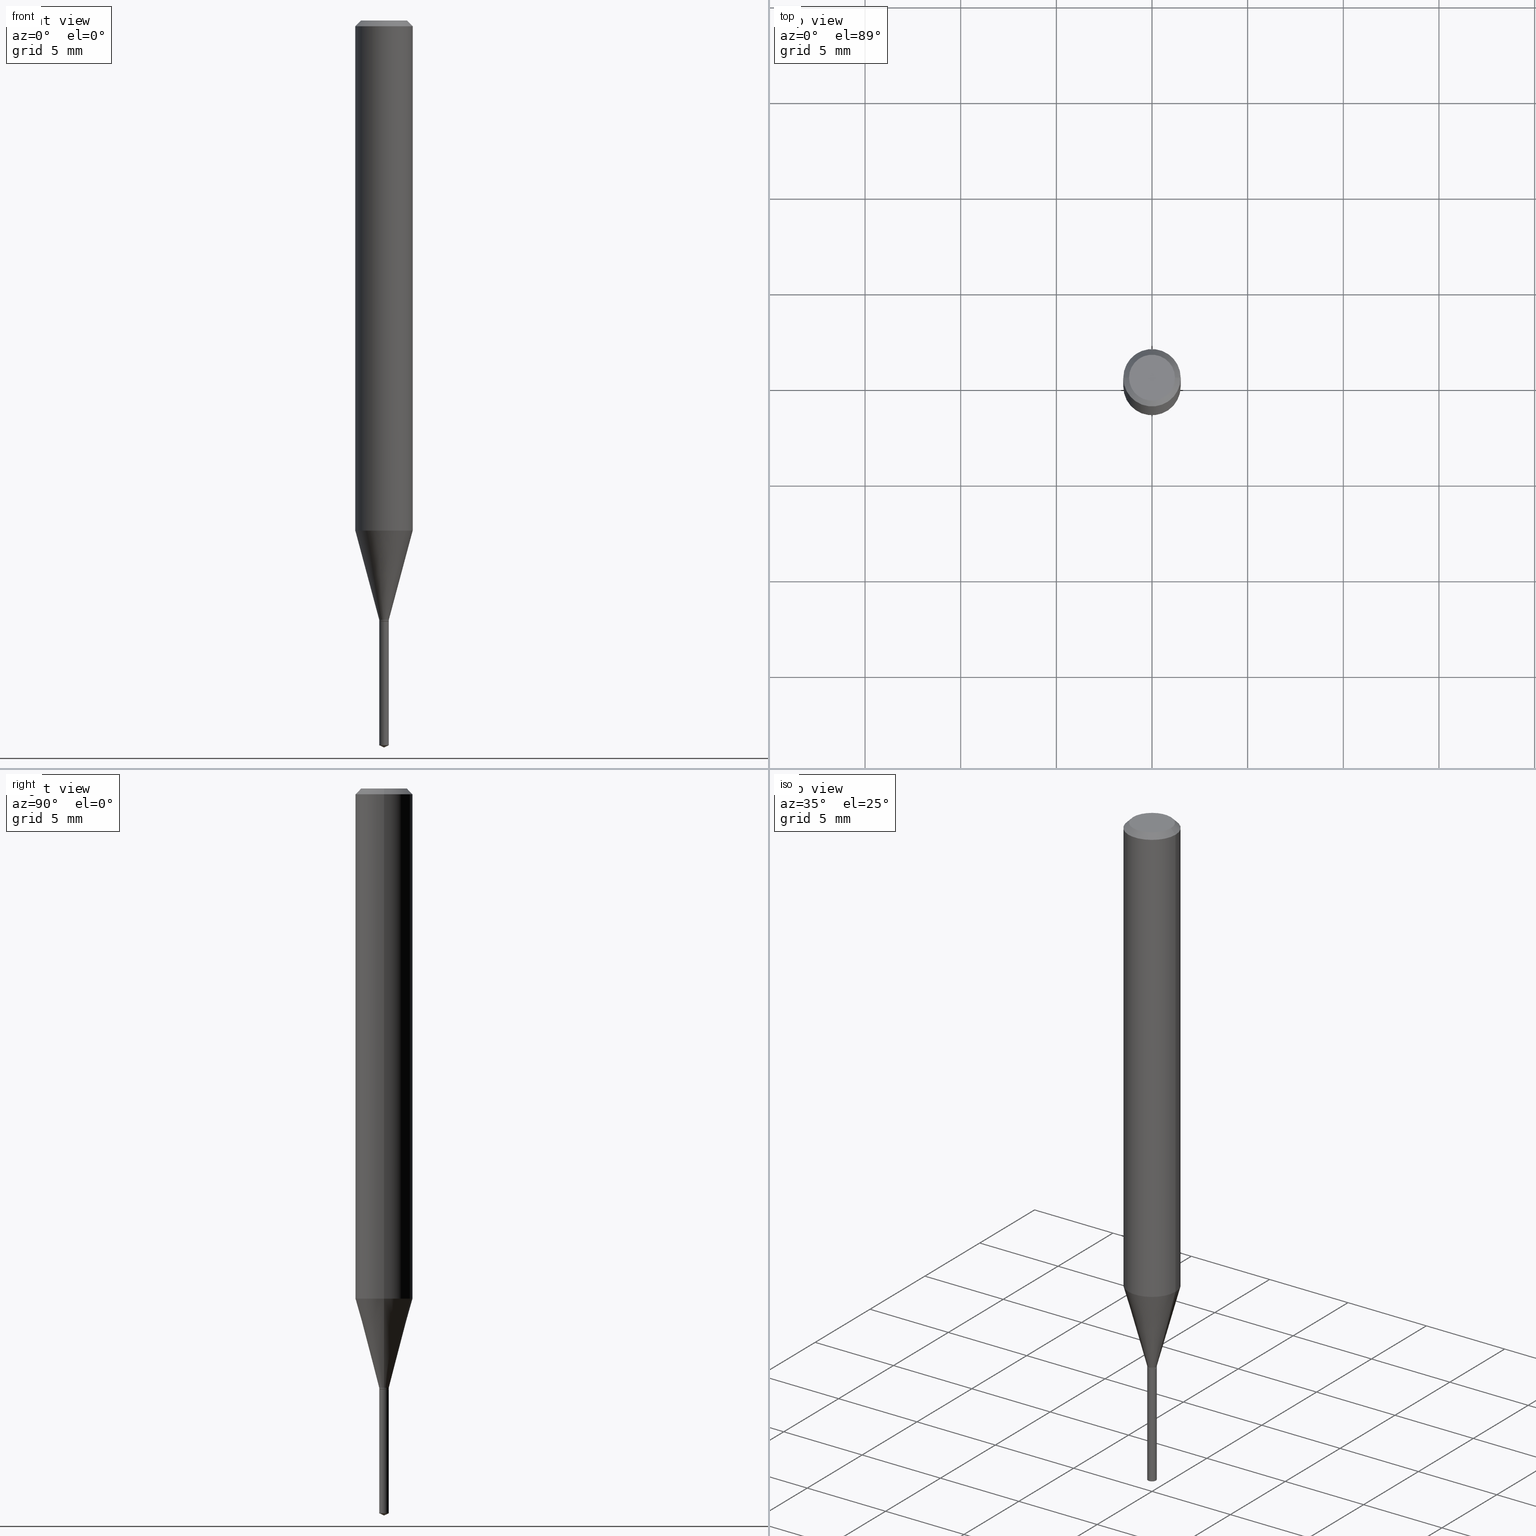
[diagram: canonical four-view strip — front | top / right | iso, engineering-drawing reading convention]
A machine part, canonical four-view strip (front | top / right | iso — engineering-drawing reading convention). The complete STEP part file that produces these views, byte-faithful:
ISO-10303-21;
HEADER;
FILE_DESCRIPTION (( 'STEP AP203' ),
    '1' );
FILE_NAME ('07425.STEP',
    '2024-04-23T21:18:27',
    ( '' ),
    ( '' ),
    'SwSTEP 2.0',
    'SolidWorks 2023',
    '' );
FILE_SCHEMA (( 'CONFIG_CONTROL_DESIGN' ));
ENDSEC;

DATA;
#1 = CARTESIAN_POINT ( 'NONE',  ( 6.998845947240637338E-17, 0.009849999999995683389, -1.236299999999999955 ) ) ;
#2 = EDGE_LOOP ( 'NONE', ( #384, #455, #309, #487 ) ) ;
#3 = ADVANCED_FACE ( 'NONE', ( #117 ), #485, .T. ) ;
#4 = DIRECTION ( 'NONE',  ( -2.445468806185136877E-29, 3.491481338843145188E-15, 1.000000000000000000 ) ) ;
#5 = CARTESIAN_POINT ( 'NONE',  ( 0.000000000000000000, 0.000000000000000000, 0.000000000000000000 ) ) ;
#6 = EDGE_LOOP ( 'NONE', ( #158, #348, #156, #137 ) ) ;
#7 = CONICAL_SURFACE ( 'NONE', #207, 0.009849999999999999381, 0.2617993877991500740 ) ;
#8 = AXIS2_PLACEMENT_3D ( 'NONE', #250, #59, #43 ) ;
#9 = CARTESIAN_POINT ( 'NONE',  ( 3.023333085086683703E-29, -4.316518379211780118E-15, -1.236299999999999955 ) ) ;
#10 = ORIENTED_EDGE ( 'NONE', *, *, #81, .T. ) ;
#11 = EDGE_CURVE ( 'NONE', #386, #382, #415, .T. ) ;
#12 = DIRECTION ( 'NONE',  ( 1.000000000000000000, 0.000000000000000000, 0.000000000000000000 ) ) ;
#13 = EDGE_LOOP ( 'NONE', ( #380, #325, #169 ) ) ;
#14 = DIRECTION ( 'NONE',  ( 1.000000000000000000, -6.982962677686278543E-15, 0.000000000000000000 ) ) ;
#15 = ADVANCED_BREP_SHAPE_REPRESENTATION ( '07425', ( #82, #83, #456 ), #86 ) ;
#16 = DATE_AND_TIME ( #316, #202 ) ;
#17 = EDGE_CURVE ( 'NONE', #196, #307, #276, .T. ) ;
#18 = CARTESIAN_POINT ( 'NONE',  ( 3.023333085086683703E-29, -4.316518379211780118E-15, -1.236299999999999955 ) ) ;
#19 = SHAPE_DEFINITION_REPRESENTATION ( #134, #15 ) ;
#20 = CLOSED_SHELL ( 'NONE', ( #92, #3, #47, #88, #220 ) ) ;
#21 = CIRCLE ( 'NONE', #8, 0.04724000000000000421 ) ;
#22 = EDGE_CURVE ( 'NONE', #382, #41, #312, .T. ) ;
#23 = FACE_OUTER_BOUND ( 'NONE', #422, .T. ) ;
#24 = CARTESIAN_POINT ( 'NONE',  ( 0.009349999999999998937, -4.381809080248147507E-15, -1.236299999999999955 ) ) ;
#25 = AXIS2_PLACEMENT_3D ( 'NONE', #419, #97, #262 ) ;
#26 = DIRECTION ( 'NONE',  ( -2.445468806185136597E-29, 3.491481338843145583E-15, 1.000000000000000000 ) ) ;
#27 = EDGE_LOOP ( 'NONE', ( #461, #252, #149, #84 ) ) ;
#28 = DIRECTION ( 'NONE',  ( -2.434295203704088980E-29, 3.507482573557964514E-15, 1.000000000000000000 ) ) ;
#29 = CARTESIAN_POINT ( 'NONE',  ( -0.009349999999999998937, -4.247433406244099767E-15, -1.236299999999999955 ) ) ;
#30 = ORIENTED_EDGE ( 'NONE', *, *, #320, .F. ) ;
#31 = DIRECTION ( 'NONE',  ( -6.982962677686267499E-15, -1.000000000000000000, 3.520397390770357234E-15 ) ) ;
#32 = CARTESIAN_POINT ( 'NONE',  ( 8.265746106709734507E-48, -1.180129479067563789E-33, -3.380025165646692144E-19 ) ) ;
#33 = FACE_OUTER_BOUND ( 'NONE', #27, .T. ) ;
#34 = VECTOR ( 'NONE', #372, 39.37007874015748143 ) ;
#35 = COORDINATED_UNIVERSAL_TIME_OFFSET ( 5, 0, .BEHIND. ) ;
#36 = CARTESIAN_POINT ( 'NONE',  ( 3.644581943626389528E-29, -5.211652026870922301E-15, -1.491506869567173377 ) ) ;
#37 = LENGTH_MEASURE_WITH_UNIT ( LENGTH_MEASURE( 0.02539999999999999897 ), #157 );
#38 = VERTEX_POINT ( 'NONE', #381 ) ;
#39 = CARTESIAN_POINT ( 'NONE',  ( -9.218263086760866738E-28, 1.328621027488851343E-13, 37.87397874015748300 ) ) ;
#40 = FACE_OUTER_BOUND ( 'NONE', #80, .T. ) ;
#41 = VERTEX_POINT ( 'NONE', #1 ) ;
#42 = APPLICATION_CONTEXT ( 'configuration controlled 3d designs of mechanical parts and assemblies' ) ;
#43 = DIRECTION ( 'NONE',  ( 1.000000000000000000, -6.982962677686266711E-15, 4.876185090822587894E-29 ) ) ;
#44 = ORIENTED_EDGE ( 'NONE', *, *, #122, .F. ) ;
#45 = CONICAL_SURFACE ( 'NONE', #120, 0.009849999999999999381, 0.2617993877991500740 ) ;
#46 = LOCAL_TIME ( 17, 18, 27.00000000000000000, #35 ) ;
#47 = ADVANCED_FACE ( 'NONE', ( #76 ), #397, .T. ) ;
#48 = CARTESIAN_POINT ( 'NONE',  ( -0.05904999999999999832, 3.711095515056362547E-16, -0.01181000000000007218 ) ) ;
#49 = ORIENTED_EDGE ( 'NONE', *, *, #11, .F. ) ;
#50 = ORIENTED_EDGE ( 'NONE', *, *, #445, .T. ) ;
#51 = EDGE_CURVE ( 'NONE', #307, #475, #291, .T. ) ;
#52 = AXIS2_PLACEMENT_3D ( 'NONE', #139, #260, #67 ) ;
#53 = PERSON_AND_ORGANIZATION_ROLE ( 'design_supplier' ) ;
#54 = PERSON ( 'UNSPECIFIED', 'UNSPECIFIED', 'UNSPECIFIED', ('UNSPECIFIED'), ('UNSPECIFIED'), ('UNSPECIFIED') ) ;
#55 = DIRECTION ( 'NONE',  ( 6.982962677686265922E-15, 1.000000000000000000, -3.507482573557964120E-15 ) ) ;
#56 = DIRECTION ( 'NONE',  ( -2.445468806185136597E-29, 3.491481338843145583E-15, 1.000000000000000000 ) ) ;
#57 = VECTOR ( 'NONE', #126, 39.37007874015748143 ) ;
#58 = CC_DESIGN_PERSON_AND_ORGANIZATION_ASSIGNMENT ( #89, #53, ( #143 ) ) ;
#59 = DIRECTION ( 'NONE',  ( -2.445468806185136597E-29, 3.491481338843145583E-15, 1.000000000000000000 ) ) ;
#60 = DIRECTION ( 'NONE',  ( 1.000000000000000000, -6.982962677686276177E-15, 0.000000000000000000 ) ) ;
#61 = EDGE_LOOP ( 'NONE', ( #145, #241, #87, #279 ) ) ;
#62 = EDGE_CURVE ( 'NONE', #38, #376, #85, .T. ) ;
#63 = AXIS2_PLACEMENT_3D ( 'NONE', #127, #399, #423 ) ;
#64 = CYLINDRICAL_SURFACE ( 'NONE', #165, 0.009850000000000001116 ) ;
#65 = DIRECTION ( 'NONE',  ( 0.7071067811866191821, -2.468850131083007662E-15, 0.7071067811864758523 ) ) ;
#66 = CARTESIAN_POINT ( 'NONE',  ( 3.015996678668129136E-29, -4.306043935195251097E-15, -1.233299999999999841 ) ) ;
#67 = DIRECTION ( 'NONE',  ( -1.000000000000000000, 6.982962677686266711E-15, 0.000000000000000000 ) ) ;
#68 = APPLICATION_CONTEXT ( 'configuration controlled 3d designs of mechanical parts and assemblies' ) ;
#69 = CARTESIAN_POINT ( 'NONE',  ( 3.023333085086683703E-29, -4.316518379211780118E-15, -1.236299999999999955 ) ) ;
#70 = APPROVAL_DATE_TIME ( #350, #153 ) ;
#71 = CARTESIAN_POINT ( 'NONE',  ( 0.05904999999999999832, -4.463468013801466955E-16, -0.01181000000000007218 ) ) ;
#72 = EDGE_CURVE ( 'NONE', #41, #382, #426, .T. ) ;
#73 = AXIS2_PLACEMENT_3D ( 'NONE', #253, #100, #226 ) ;
#74 = VECTOR ( 'NONE', #368, 39.37007874015747433 ) ;
#75 = APPLICATION_PROTOCOL_DEFINITION ( 'international standard', 'config_control_design', 1994, #42 ) ;
#76 = FACE_OUTER_BOUND ( 'NONE', #13, .T. ) ;
#77 = CARTESIAN_POINT ( 'NONE',  ( 3.023333085086683703E-29, -4.316518379211780118E-15, -1.236299999999999955 ) ) ;
#78 = ORIENTED_EDGE ( 'NONE', *, *, #81, .F. ) ;
#79 = APPROVAL_STATUS ( 'not_yet_approved' ) ;
#80 = EDGE_LOOP ( 'NONE', ( #78, #343, #231, #152 ) ) ;
#81 = EDGE_CURVE ( 'NONE', #365, #270, #268, .T. ) ;
#82 = MANIFOLD_SOLID_BREP ( 'Body-Move/Copy2[1]', #20 ) ;
#83 = MANIFOLD_SOLID_BREP ( 'Body-Move/Copy2[2]', #404 ) ;
#84 = ORIENTED_EDGE ( 'NONE', *, *, #249, .F. ) ;
#85 = CIRCLE ( 'NONE', #93, 0.009849999999999999381 ) ;
#86 =( GEOMETRIC_REPRESENTATION_CONTEXT ( 3 ) GLOBAL_UNCERTAINTY_ASSIGNED_CONTEXT ( ( #222 ) ) GLOBAL_UNIT_ASSIGNED_CONTEXT ( ( #278, #458, #197 ) ) REPRESENTATION_CONTEXT ( 'NONE', 'WORKASPACE' ) );
#87 = ORIENTED_EDGE ( 'NONE', *, *, #308, .F. ) ;
#88 = ADVANCED_FACE ( 'NONE', ( #147 ), #64, .T. ) ;
#89 = PERSON_AND_ORGANIZATION ( #54, #398 ) ;
#90 = VECTOR ( 'NONE', #103, 39.37007874015748854 ) ;
#91 = CALENDAR_DATE ( 2024, 23, 4 ) ;
#92 = ADVANCED_FACE ( 'NONE', ( #479 ), #229, .T. ) ;
#93 = AXIS2_PLACEMENT_3D ( 'NONE', #66, #142, #476 ) ;
#94 = DIRECTION ( 'NONE',  ( 1.000000000000000000, -6.982962677686266711E-15, 4.876176775795936353E-29 ) ) ;
#95 = EDGE_CURVE ( 'NONE', #386, #271, #306, .T. ) ;
#96 = DIRECTION ( 'NONE',  ( -2.445468806185136597E-29, 3.491481338843145583E-15, 1.000000000000000000 ) ) ;
#97 = DIRECTION ( 'NONE',  ( -2.434295203704088980E-29, 3.507482573557964514E-15, 1.000000000000000000 ) ) ;
#98 = CARTESIAN_POINT ( 'NONE',  ( 3.015996678668129136E-29, -4.306043935195251097E-15, -1.233299999999999841 ) ) ;
#99 = ORIENTED_EDGE ( 'NONE', *, *, #339, .F. ) ;
#100 = DIRECTION ( 'NONE',  ( -2.445468806185136597E-29, 3.491481338843145583E-15, 1.000000000000000000 ) ) ;
#101 = DIRECTION ( 'NONE',  ( 1.000000000000000000, -6.982962677686265922E-15, 4.876176775795935232E-29 ) ) ;
#102 = EDGE_LOOP ( 'NONE', ( #186, #30 ) ) ;
#103 = DIRECTION ( 'NONE',  ( -6.328713451373404877E-15, -0.9063077870366536004, 0.4226182617406914477 ) ) ;
#104 = LINE ( 'NONE', #210, #34 ) ;
#105 = ORIENTED_EDGE ( 'NONE', *, *, #62, .F. ) ;
#106 = CC_DESIGN_DATE_AND_TIME_ASSIGNMENT ( #489, #148, ( #420 ) ) ;
#107 = FACE_OUTER_BOUND ( 'NONE', #2, .T. ) ;
#108 = DIRECTION ( 'NONE',  ( -2.434295203704088980E-29, 3.507482573557964514E-15, 1.000000000000000000 ) ) ;
#109 = APPROVAL_STATUS ( 'not_yet_approved' ) ;
#110 = CARTESIAN_POINT ( 'NONE',  ( 3.015996678668129136E-29, -4.306043935195251097E-15, -1.233299999999999841 ) ) ;
#111 = AXIS2_PLACEMENT_3D ( 'NONE', #128, #400, #167 ) ;
#112 = PERSON_AND_ORGANIZATION_ROLE ( 'design_owner' ) ;
#113 = ORIENTED_EDGE ( 'NONE', *, *, #394, .T. ) ;
#114 = DIRECTION ( 'NONE',  ( 1.000000000000000000, -6.982962677686276177E-15, 0.000000000000000000 ) ) ;
#115 = EDGE_LOOP ( 'NONE', ( #345, #50, #133, #49 ) ) ;
#116 = PERSON_AND_ORGANIZATION ( #54, #398 ) ;
#117 = FACE_OUTER_BOUND ( 'NONE', #482, .T. ) ;
#118 = LINE ( 'NONE', #48, #446 ) ;
#119 = ORIENTED_EDGE ( 'NONE', *, *, #432, .T. ) ;
#120 = AXIS2_PLACEMENT_3D ( 'NONE', #98, #263, #223 ) ;
#121 = LINE ( 'NONE', #315, #141 ) ;
#122 = EDGE_CURVE ( 'NONE', #307, #196, #442, .T. ) ;
#123 = DATE_AND_TIME ( #91, #353 ) ;
#124 = CIRCLE ( 'NONE', #407, 0.009849999999999999381 ) ;
#125 = EDGE_CURVE ( 'NONE', #290, #386, #187, .T. ) ;
#126 = DIRECTION ( 'NONE',  ( 6.439704144417061119E-15, 0.9063077870366565980, 0.4226182617406851749 ) ) ;
#127 = CARTESIAN_POINT ( 'NONE',  ( 3.015996678668129136E-29, -4.306043935195251097E-15, -1.233299999999999841 ) ) ;
#128 = CARTESIAN_POINT ( 'NONE',  ( 4.132873053354867254E-48, -5.900647395337818946E-34, -1.690012582823346072E-19 ) ) ;
#129 = DIMENSIONAL_EXPONENTS ( 1.000000000000000000, 0.000000000000000000, 0.000000000000000000, 0.000000000000000000, 0.000000000000000000, 0.000000000000000000, 0.000000000000000000 ) ;
#130 = AXIS2_PLACEMENT_3D ( 'NONE', #364, #328, #144 ) ;
#131 = CONICAL_SURFACE ( 'NONE', #335, 0.009349999999999998937, 0.7853981633975496424 ) ;
#132 = CARTESIAN_POINT ( 'NONE',  ( 3.022110350683592022E-29, -4.314772638542359403E-15, -1.235800000000000010 ) ) ;
#133 = ORIENTED_EDGE ( 'NONE', *, *, #22, .F. ) ;
#134 = PRODUCT_DEFINITION_SHAPE ( 'NONE', 'NONE',  #420 ) ;
#135 = DIRECTION ( 'NONE',  ( -2.434295203704088980E-29, 3.507482573557964514E-15, 1.000000000000000000 ) ) ;
#136 = LINE ( 'NONE', #470, #257 ) ;
#137 = ORIENTED_EDGE ( 'NONE', *, *, #363, .F. ) ;
#138 = DIRECTION ( 'NONE',  ( 1.000000000000000000, -6.982962677686276177E-15, 0.000000000000000000 ) ) ;
#139 = CARTESIAN_POINT ( 'NONE',  ( 2.888098660104664204E-31, -4.123439461173780263E-17, -0.01181000000000007218 ) ) ;
#140 = ORIENTED_EDGE ( 'NONE', *, *, #22, .T. ) ;
#141 = VECTOR ( 'NONE', #4, 39.37007874015748143 ) ;
#142 = DIRECTION ( 'NONE',  ( -2.445468806185136597E-29, 3.491481338843145583E-15, 1.000000000000000000 ) ) ;
#143 = PRODUCT_DEFINITION_FORMATION_WITH_SPECIFIED_SOURCE ( 'ANY', '', #247, .NOT_KNOWN. ) ;
#144 = DIRECTION ( 'NONE',  ( -6.982962677686265922E-15, -1.000000000000000000, 0.000000000000000000 ) ) ;
#145 = ORIENTED_EDGE ( 'NONE', *, *, #437, .T. ) ;
#146 = EDGE_CURVE ( 'NONE', #270, #475, #318, .T. ) ;
#147 = FACE_OUTER_BOUND ( 'NONE', #174, .T. ) ;
#148 = DATE_TIME_ROLE ( 'creation_date' ) ;
#149 = ORIENTED_EDGE ( 'NONE', *, *, #302, .T. ) ;
#150 = CYLINDRICAL_SURFACE ( 'NONE', #236, 0.05905000000000006771 ) ;
#151 = APPROVAL_ROLE ( '' ) ;
#152 = ORIENTED_EDGE ( 'NONE', *, *, #249, .T. ) ;
#153 = APPROVAL ( #79, 'UNSPECIFIED' ) ;
#154 = CARTESIAN_POINT ( 'NONE',  ( -0.009849999999999999381, -4.240419827396435201E-15, -1.235800000000000010 ) ) ;
#155 = AXIS2_PLACEMENT_3D ( 'NONE', #39, #108, #31 ) ;
#156 = ORIENTED_EDGE ( 'NONE', *, *, #359, .T. ) ;
#157 =( LENGTH_UNIT ( ) NAMED_UNIT ( * ) SI_UNIT ( $, .METRE. ) );
#158 = ORIENTED_EDGE ( 'NONE', *, *, #346, .F. ) ;
#159 = PERSON_AND_ORGANIZATION ( #54, #398 ) ;
#160 = ORIENTED_EDGE ( 'NONE', *, *, #445, .F. ) ;
#161 = ADVANCED_FACE ( 'NONE', ( #33 ), #150, .T. ) ;
#162 = APPROVAL_ROLE ( '' ) ;
#163 = DIRECTION ( 'NONE',  ( -0.2588190451025213501, 5.211531920934551042E-15, 0.9659258262890682012 ) ) ;
#164 = ADVANCED_FACE ( 'NONE', ( #454 ), #323, .T. ) ;
#165 = AXIS2_PLACEMENT_3D ( 'NONE', #441, #191, #259 ) ;
#166 = AXIS2_PLACEMENT_3D ( 'NONE', #77, #344, #379 ) ;
#167 = DIRECTION ( 'NONE',  ( -1.000000000000000000, 6.982962677686265922E-15, -4.876176775795935793E-29 ) ) ;
#168 = CARTESIAN_POINT ( 'NONE',  ( -0.04724000000000000421, 3.504923541997677355E-16, -3.380025165670481712E-19 ) ) ;
#169 = ORIENTED_EDGE ( 'NONE', *, *, #274, .F. ) ;
#170 = ADVANCED_FACE ( 'NONE', ( #221 ), #7, .T. ) ;
#171 = VECTOR ( 'NONE', #163, 39.37007874015747433 ) ;
#172 = AXIS2_PLACEMENT_3D ( 'NONE', #460, #272, #266 ) ;
#173 = CARTESIAN_POINT ( 'NONE',  ( 0.04724000000000000421, -3.852183633974369345E-16, -3.380025165621689721E-19 ) ) ;
#174 = EDGE_LOOP ( 'NONE', ( #160, #427, #457, #224 ) ) ;
#175 = DIRECTION ( 'NONE',  ( -6.982962677686265133E-15, -1.000000000000000000, 0.000000000000000000 ) ) ;
#176 = DIRECTION ( 'NONE',  ( -2.445468806185136597E-29, 3.491481338843145583E-15, 1.000000000000000000 ) ) ;
#177 = ORIENTED_EDGE ( 'NONE', *, *, #394, .F. ) ;
#178 = DIRECTION ( 'NONE',  ( -6.982962677686267499E-15, -1.000000000000000000, 3.520397390770357234E-15 ) ) ;
#179 = EDGE_CURVE ( 'NONE', #181, #376, #121, .T. ) ;
#180 = FACE_OUTER_BOUND ( 'NONE', #373, .T. ) ;
#181 = VERTEX_POINT ( 'NONE', #154 ) ;
#182 = AXIS2_PLACEMENT_3D ( 'NONE', #403, #409, #303 ) ;
#183 = APPROVAL_PERSON_ORGANIZATION ( #159, #153, #151 ) ;
#184 = CARTESIAN_POINT ( 'NONE',  ( 0.000000000000000000, 0.000000000000000000, 0.000000000000000000 ) ) ;
#185 = CALENDAR_DATE ( 2024, 23, 4 ) ;
#186 = ORIENTED_EDGE ( 'NONE', *, *, #437, .F. ) ;
#187 = LINE ( 'NONE', #298, #90 ) ;
#188 = FACE_OUTER_BOUND ( 'NONE', #6, .T. ) ;
#189 = EDGE_LOOP ( 'NONE', ( #478, #10, #233, #261 ) ) ;
#190 = ADVANCED_FACE ( 'NONE', ( #349 ), #313, .F. ) ;
#191 = DIRECTION ( 'NONE',  ( -2.434295203704088980E-29, 3.507482573557964514E-15, 1.000000000000000000 ) ) ;
#192 = ORIENTED_EDGE ( 'NONE', *, *, #179, .T. ) ;
#193 = AXIS2_PLACEMENT_3D ( 'NONE', #69, #28, #483 ) ;
#194 = VECTOR ( 'NONE', #238, 39.37007874015748143 ) ;
#195 = MECHANICAL_CONTEXT ( 'NONE', #68, 'mechanical' ) ;
#196 = VERTEX_POINT ( 'NONE', #225 ) ;
#197 =( NAMED_UNIT ( * ) SI_UNIT ( $, .STERADIAN. ) SOLID_ANGLE_UNIT ( ) );
#198 = ORIENTED_EDGE ( 'NONE', *, *, #212, .F. ) ;
#199 = ADVANCED_FACE ( 'NONE', ( #107 ), #370, .T. ) ;
#200 = ORIENTED_EDGE ( 'NONE', *, *, #146, .F. ) ;
#201 = AXIS2_PLACEMENT_3D ( 'NONE', #36, #135, #439 ) ;
#202 = LOCAL_TIME ( 17, 18, 27.00000000000000000, #469 ) ;
#203 = CARTESIAN_POINT ( 'NONE',  ( 0.05904999999999999832, -4.535783407291118600E-16, -0.01181000000000007218 ) ) ;
#204 = APPROVAL_ROLE ( '' ) ;
#205 = CC_DESIGN_DATE_AND_TIME_ASSIGNMENT ( #16, #206, ( #297 ) ) ;
#206 = DATE_TIME_ROLE ( 'classification_date' ) ;
#207 = AXIS2_PLACEMENT_3D ( 'NONE', #110, #371, #14 ) ;
#208 = DIRECTION ( 'NONE',  ( 1.000000000000000000, -6.982962677686266711E-15, 0.000000000000000000 ) ) ;
#209 = CC_DESIGN_SECURITY_CLASSIFICATION ( #297, ( #143 ) ) ;
#210 = CARTESIAN_POINT ( 'NONE',  ( -0.009349999999999998937, -4.250082633418210968E-15, -1.236299999999999955 ) ) ;
#211 = CARTESIAN_POINT ( 'NONE',  ( 0.009349999999999998937, -4.381809080248147507E-15, -1.236299999999999955 ) ) ;
#212 = EDGE_CURVE ( 'NONE', #376, #307, #246, .T. ) ;
#213 = CARTESIAN_POINT ( 'NONE',  ( -0.05905000000000013016, -3.245373470817042452E-15, -1.049683100267611247 ) ) ;
#214 = PLANE ( 'NONE',  #111 ) ;
#215 = VERTEX_POINT ( 'NONE', #211 ) ;
#216 = VECTOR ( 'NONE', #413, 39.37007874015748143 ) ;
#217 = AXIS2_PLACEMENT_3D ( 'NONE', #324, #26, #251 ) ;
#218 = DIRECTION ( 'NONE',  ( -2.445468806185136597E-29, 3.491481338843145583E-15, 1.000000000000000000 ) ) ;
#219 = CARTESIAN_POINT ( 'NONE',  ( -6.878218237517330726E-17, -0.009850000000005217429, -1.491506869567173377 ) ) ;
#220 = ADVANCED_FACE ( 'NONE', ( #395 ), #319, .F. ) ;
#221 = FACE_OUTER_BOUND ( 'NONE', #421, .T. ) ;
#222 = UNCERTAINTY_MEASURE_WITH_UNIT (LENGTH_MEASURE( 1.000000000000000082E-05 ), #278, 'distance_accuracy_value', 'NONE');
#223 = DIRECTION ( 'NONE',  ( 1.000000000000000000, -6.982962677686278543E-15, 0.000000000000000000 ) ) ;
#224 = ORIENTED_EDGE ( 'NONE', *, *, #72, .F. ) ;
#225 = CARTESIAN_POINT ( 'NONE',  ( 0.05905000000000013016, -4.077292902400757654E-15, -1.049683100267611247 ) ) ;
#226 = DIRECTION ( 'NONE',  ( 1.000000000000000000, -6.982962677686264344E-15, 0.000000000000000000 ) ) ;
#227 = PERSON_AND_ORGANIZATION ( #54, #398 ) ;
#228 = AXIS2_PLACEMENT_3D ( 'NONE', #32, #176, #477 ) ;
#229 = CYLINDRICAL_SURFACE ( 'NONE', #193, 0.009850000000000001116 ) ;
#230 = DIRECTION ( 'NONE',  ( -2.445468806185136597E-29, 3.491481338843145583E-15, 1.000000000000000000 ) ) ;
#231 = ORIENTED_EDGE ( 'NONE', *, *, #453, .T. ) ;
#232 = CARTESIAN_POINT ( 'NONE',  ( -6.878218237517948257E-17, -0.009850000000004317108, -1.236299999999999955 ) ) ;
#233 = ORIENTED_EDGE ( 'NONE', *, *, #146, .T. ) ;
#234 = CARTESIAN_POINT ( 'NONE',  ( -0.05904999999999999832, -1.433516189981219950E-15, -0.01181000000000007218 ) ) ;
#235 = ORIENTED_EDGE ( 'NONE', *, *, #17, .F. ) ;
#236 = AXIS2_PLACEMENT_3D ( 'NONE', #184, #218, #329 ) ;
#237 = CIRCLE ( 'NONE', #166, 0.009349999999999998937 ) ;
#238 = DIRECTION ( 'NONE',  ( -2.434295203704088980E-29, 3.507482573557964120E-15, 1.000000000000000000 ) ) ;
#239 = ORIENTED_EDGE ( 'NONE', *, *, #240, .T. ) ;
#240 = EDGE_CURVE ( 'NONE', #290, #271, #358, .T. ) ;
#241 = ORIENTED_EDGE ( 'NONE', *, *, #346, .T. ) ;
#242 = CALENDAR_DATE ( 2024, 23, 4 ) ;
#243 = PERSON_AND_ORGANIZATION ( #54, #398 ) ;
#244 = CC_DESIGN_PERSON_AND_ORGANIZATION_ASSIGNMENT ( #116, #112, ( #247 ) ) ;
#245 = CC_DESIGN_APPROVAL ( #471, ( #297 ) ) ;
#246 = LINE ( 'NONE', #356, #171 ) ;
#247 = PRODUCT ( '07425', '07425', '', ( #195 ) ) ;
#248 = CIRCLE ( 'NONE', #63, 0.009849999999999999381 ) ;
#249 = EDGE_CURVE ( 'NONE', #475, #270, #334, .T. ) ;
#250 = CARTESIAN_POINT ( 'NONE',  ( 8.265746106709734507E-48, -1.180129479067563789E-33, -3.380025165646692144E-19 ) ) ;
#251 = DIRECTION ( 'NONE',  ( 1.000000000000000000, -6.982962677686229634E-15, 0.000000000000000000 ) ) ;
#252 = ORIENTED_EDGE ( 'NONE', *, *, #122, .T. ) ;
#253 = CARTESIAN_POINT ( 'NONE',  ( 2.566967278084148050E-29, -3.664948956283382734E-15, -1.049683100267611247 ) ) ;
#254 = CARTESIAN_POINT ( 'NONE',  ( 0.009849999999999999381, -6.878218237520971813E-17, 4.803034124158995733E-31 ) ) ;
#255 = EDGE_LOOP ( 'NONE', ( #425, #192, #105, #99 ) ) ;
#256 = CC_DESIGN_PERSON_AND_ORGANIZATION_ASSIGNMENT ( #464, #281, ( #143 ) ) ;
#257 = VECTOR ( 'NONE', #448, 39.37007874015748143 ) ;
#258 = CC_DESIGN_APPROVAL ( #153, ( #420 ) ) ;
#259 = DIRECTION ( 'NONE',  ( -6.982962677686265133E-15, -1.000000000000000000, 0.000000000000000000 ) ) ;
#260 = DIRECTION ( 'NONE',  ( 2.445468806185136597E-29, -3.491481338843145583E-15, -1.000000000000000000 ) ) ;
#261 = ORIENTED_EDGE ( 'NONE', *, *, #453, .F. ) ;
#262 = DIRECTION ( 'NONE',  ( -6.982962677686265133E-15, -1.000000000000000000, 0.000000000000000000 ) ) ;
#263 = DIRECTION ( 'NONE',  ( -2.445468806185136597E-29, 3.491481338843145583E-15, 1.000000000000000000 ) ) ;
#264 = VERTEX_POINT ( 'NONE', #321 ) ;
#265 = CARTESIAN_POINT ( 'NONE',  ( 3.023333085086683703E-29, -4.316518379211780118E-15, -1.236299999999999955 ) ) ;
#266 = DIRECTION ( 'NONE',  ( -1.000000000000000000, 6.982962677686266711E-15, 0.000000000000000000 ) ) ;
#267 = LOCAL_TIME ( 17, 18, 27.00000000000000000, #357 ) ;
#268 = LINE ( 'NONE', #71, #216 ) ;
#269 = EDGE_CURVE ( 'NONE', #376, #38, #248, .T. ) ;
#270 = VERTEX_POINT ( 'NONE', #203 ) ;
#271 = VERTEX_POINT ( 'NONE', #362 ) ;
#272 = DIRECTION ( 'NONE',  ( 2.445468806185136597E-29, -3.491481338843145583E-15, -1.000000000000000000 ) ) ;
#273 = VERTEX_POINT ( 'NONE', #29 ) ;
#274 = EDGE_CURVE ( 'NONE', #271, #386, #435, .T. ) ;
#275 = AXIS2_PLACEMENT_3D ( 'NONE', #18, #434, #55 ) ;
#276 = CIRCLE ( 'NONE', #430, 0.05905000000000013710 ) ;
#277 = AXIS2_PLACEMENT_3D ( 'NONE', #474, #361, #60 ) ;
#278 =( CONVERSION_BASED_UNIT ( 'INCH', #37 ) LENGTH_UNIT ( ) NAMED_UNIT ( #129 ) );
#279 = ORIENTED_EDGE ( 'NONE', *, *, #359, .F. ) ;
#280 = EDGE_CURVE ( 'NONE', #365, #300, #467, .T. ) ;
#281 = PERSON_AND_ORGANIZATION_ROLE ( 'creator' ) ;
#282 = CARTESIAN_POINT ( 'NONE',  ( 3.669819167384334083E-29, -5.207980025344209071E-15, -1.496099999999999985 ) ) ;
#283 = AXIS2_PLACEMENT_3D ( 'NONE', #452, #340, #408 ) ;
#284 = DIRECTION ( 'NONE',  ( -2.445468806185136597E-29, 3.491481338843145583E-15, 1.000000000000000000 ) ) ;
#285 = ADVANCED_FACE ( 'NONE', ( #330 ), #45, .T. ) ;
#286 = AXIS2_PLACEMENT_3D ( 'NONE', #390, #284, #393 ) ;
#287 = CARTESIAN_POINT ( 'NONE',  ( 0.000000000000000000, 0.000000000000000000, 0.000000000000000000 ) ) ;
#288 = VECTOR ( 'NONE', #410, 39.37007874015748143 ) ;
#289 = CARTESIAN_POINT ( 'NONE',  ( 0.000000000000000000, 0.000000000000000000, 0.000000000000000000 ) ) ;
#290 = VERTEX_POINT ( 'NONE', #414 ) ;
#291 = LINE ( 'NONE', #374, #484 ) ;
#292 = CC_DESIGN_PERSON_AND_ORGANIZATION_ASSIGNMENT ( #243, #429, ( #297 ) ) ;
#293 = DIRECTION ( 'NONE',  ( -2.445468806185136597E-29, 3.491481338843145583E-15, 1.000000000000000000 ) ) ;
#294 = DIRECTION ( 'NONE',  ( -2.434295203704088980E-29, 3.507482573557964514E-15, 1.000000000000000000 ) ) ;
#295 = DESIGN_CONTEXT ( 'detailed design', #42, 'design' ) ;
#296 = FACE_OUTER_BOUND ( 'NONE', #255, .T. ) ;
#297 = SECURITY_CLASSIFICATION ( '', '', #354 ) ;
#298 = CARTESIAN_POINT ( 'NONE',  ( 3.641949054261687101E-29, -5.247544678300069450E-15, -1.496099999999999985 ) ) ;
#299 = CYLINDRICAL_SURFACE ( 'NONE', #473, 0.05905000000000006771 ) ;
#300 = VERTEX_POINT ( 'NONE', #168 ) ;
#301 = CARTESIAN_POINT ( 'NONE',  ( -9.218263086760866738E-28, 1.328621027488851343E-13, 37.87397874015748300 ) ) ;
#302 = EDGE_CURVE ( 'NONE', #196, #270, #136, .T. ) ;
#303 = DIRECTION ( 'NONE',  ( 1.000000000000000000, -6.982962677686266711E-15, 0.000000000000000000 ) ) ;
#304 = CALENDAR_DATE ( 2024, 23, 4 ) ;
#305 = ORIENTED_EDGE ( 'NONE', *, *, #269, .T. ) ;
#306 = CIRCLE ( 'NONE', #201, 0.009850000000000002850 ) ;
#307 = VERTEX_POINT ( 'NONE', #213 ) ;
#308 = EDGE_CURVE ( 'NONE', #264, #181, #326, .T. ) ;
#309 = ORIENTED_EDGE ( 'NONE', *, *, #339, .T. ) ;
#310 = CARTESIAN_POINT ( 'NONE',  ( 6.998845947240009947E-17, 0.009849999999995685124, -1.236299999999999955 ) ) ;
#311 = ORIENTED_EDGE ( 'NONE', *, *, #51, .T. ) ;
#312 = CIRCLE ( 'NONE', #25, 0.009849999999999999381 ) ;
#313 = PLANE ( 'NONE',  #283 ) ;
#314 = CONICAL_SURFACE ( 'NONE', #172, 0.05904999999999999832, 0.7853981633974452814 ) ;
#315 = CARTESIAN_POINT ( 'NONE',  ( -0.009849999999999999381, 6.998845947236986391E-17, -4.845151063901081251E-31 ) ) ;
#316 = CALENDAR_DATE ( 2024, 23, 4 ) ;
#317 = COORDINATED_UNIVERSAL_TIME_OFFSET ( 5, 0, .BEHIND. ) ;
#318 = CIRCLE ( 'NONE', #182, 0.05904999999999999832 ) ;
#319 = PLANE ( 'NONE',  #275 ) ;
#320 = EDGE_CURVE ( 'NONE', #273, #215, #431, .T. ) ;
#321 = CARTESIAN_POINT ( 'NONE',  ( 0.009849999999999999381, -4.383554820917568222E-15, -1.235800000000000010 ) ) ;
#322 = CARTESIAN_POINT ( 'NONE',  ( -6.878218237517947024E-17, -0.009850000000004313638, -1.236299999999999955 ) ) ;
#323 = CONICAL_SURFACE ( 'NONE', #352, 0.009349999999999998937, 0.7853981633975496424 ) ;
#324 = CARTESIAN_POINT ( 'NONE',  ( 3.022110350683592022E-29, -4.314772638542359403E-15, -1.235800000000000010 ) ) ;
#325 = ORIENTED_EDGE ( 'NONE', *, *, #125, .T. ) ;
#326 = CIRCLE ( 'NONE', #217, 0.009849999999999999381 ) ;
#327 = CC_DESIGN_PERSON_AND_ORGANIZATION_ASSIGNMENT ( #227, #375, ( #420 ) ) ;
#328 = DIRECTION ( 'NONE',  ( -2.434295203704088980E-29, 3.507482573557964514E-15, 1.000000000000000000 ) ) ;
#329 = DIRECTION ( 'NONE',  ( 1.000000000000000000, -6.982962677686266711E-15, 4.876176775795936353E-29 ) ) ;
#330 = FACE_OUTER_BOUND ( 'NONE', #406, .T. ) ;
#331 = DIRECTION ( 'NONE',  ( 1.000000000000000000, -6.982962677686264344E-15, 0.000000000000000000 ) ) ;
#332 = LINE ( 'NONE', #254, #288 ) ;
#333 = ORIENTED_EDGE ( 'NONE', *, *, #212, .T. ) ;
#334 = CIRCLE ( 'NONE', #377, 0.05904999999999999832 ) ;
#335 = AXIS2_PLACEMENT_3D ( 'NONE', #9, #230, #114 ) ;
#336 = CONICAL_SURFACE ( 'NONE', #52, 0.05904999999999999832, 0.7853981633974452814 ) ;
#337 = DIRECTION ( 'NONE',  ( -2.434295203704088980E-29, 3.507482573557964120E-15, 1.000000000000000000 ) ) ;
#338 = DIRECTION ( 'NONE',  ( 0.000000000000000000, 0.000000000000000000, 1.000000000000000000 ) ) ;
#339 = EDGE_CURVE ( 'NONE', #264, #38, #332, .T. ) ;
#340 = DIRECTION ( 'NONE',  ( -2.438088387897960049E-29, 3.491481338843145188E-15, 1.000000000000000000 ) ) ;
#341 = DIRECTION ( 'NONE',  ( -2.434295203704088980E-29, 3.507482573557964514E-15, 1.000000000000000000 ) ) ;
#342 = DIRECTION ( 'NONE',  ( -0.7071067811865453523, 2.468850131082234184E-15, -0.7071067811865496822 ) ) ;
#343 = ORIENTED_EDGE ( 'NONE', *, *, #432, .F. ) ;
#344 = DIRECTION ( 'NONE',  ( -2.445468806185136597E-29, 3.491481338843145583E-15, 1.000000000000000000 ) ) ;
#345 = ORIENTED_EDGE ( 'NONE', *, *, #95, .T. ) ;
#346 = EDGE_CURVE ( 'NONE', #273, #181, #104, .T. ) ;
#347 = LINE ( 'NONE', #310, #194 ) ;
#348 = ORIENTED_EDGE ( 'NONE', *, *, #320, .T. ) ;
#349 = FACE_OUTER_BOUND ( 'NONE', #102, .T. ) ;
#350 = DATE_AND_TIME ( #304, #366 ) ;
#351 = ORIENTED_EDGE ( 'NONE', *, *, #72, .T. ) ;
#352 = AXIS2_PLACEMENT_3D ( 'NONE', #367, #488, #138 ) ;
#353 = LOCAL_TIME ( 17, 18, 27.00000000000000000, #317 ) ;
#354 = SECURITY_CLASSIFICATION_LEVEL ( 'unclassified' ) ;
#355 = ADVANCED_FACE ( 'NONE', ( #23 ), #214, .F. ) ;
#356 = CARTESIAN_POINT ( 'NONE',  ( -0.009849999999999999381, -4.236055475722881048E-15, -1.233299999999999841 ) ) ;
#357 = COORDINATED_UNIVERSAL_TIME_OFFSET ( 5, 0, .BEHIND. ) ;
#358 = LINE ( 'NONE', #282, #57 ) ;
#359 = EDGE_CURVE ( 'NONE', #215, #264, #405, .T. ) ;
#360 = APPROVAL_PERSON_ORGANIZATION ( #392, #471, #204 ) ;
#361 = DIRECTION ( 'NONE',  ( -2.445468806185136597E-29, 3.491481338843145583E-15, 1.000000000000000000 ) ) ;
#362 = CARTESIAN_POINT ( 'NONE',  ( 6.998845947240633640E-17, 0.009849999999994793476, -1.491506869567173377 ) ) ;
#363 = EDGE_CURVE ( 'NONE', #181, #264, #124, .T. ) ;
#364 = CARTESIAN_POINT ( 'NONE',  ( 3.644581943626389528E-29, -5.211652026870922301E-15, -1.491506869567173377 ) ) ;
#365 = VERTEX_POINT ( 'NONE', #173 ) ;
#366 = LOCAL_TIME ( 17, 18, 27.00000000000000000, #424 ) ;
#367 = CARTESIAN_POINT ( 'NONE',  ( 3.023333085086683703E-29, -4.316518379211780118E-15, -1.236299999999999955 ) ) ;
#368 = DIRECTION ( 'NONE',  ( 0.2588190451025213501, 1.565188264969621968E-15, 0.9659258262890682012 ) ) ;
#369 = ORIENTED_EDGE ( 'NONE', *, *, #302, .F. ) ;
#370 = CYLINDRICAL_SURFACE ( 'NONE', #286, 0.009849999999999999381 ) ;
#371 = DIRECTION ( 'NONE',  ( -2.445468806185136597E-29, 3.491481338843145583E-15, 1.000000000000000000 ) ) ;
#372 = DIRECTION ( 'NONE',  ( -0.7071067811866191821, 7.493145998870612907E-15, 0.7071067811864758523 ) ) ;
#373 = EDGE_LOOP ( 'NONE', ( #411, #311, #200, #369 ) ) ;
#374 = CARTESIAN_POINT ( 'NONE',  ( -0.05905000000000006771, 4.195754854663396409E-16, -2.904631170795525045E-30 ) ) ;
#375 = PERSON_AND_ORGANIZATION_ROLE ( 'creator' ) ;
#376 = VERTEX_POINT ( 'NONE', #402 ) ;
#377 = AXIS2_PLACEMENT_3D ( 'NONE', #396, #56, #208 ) ;
#378 = CARTESIAN_POINT ( 'NONE',  ( 2.566967278084148050E-29, -3.664948956283382734E-15, -1.049683100267611247 ) ) ;
#379 = DIRECTION ( 'NONE',  ( 1.000000000000000000, -6.982962677686276177E-15, 0.000000000000000000 ) ) ;
#380 = ORIENTED_EDGE ( 'NONE', *, *, #240, .F. ) ;
#381 = CARTESIAN_POINT ( 'NONE',  ( 0.009849999999999999381, -4.374826117570460704E-15, -1.233299999999999841 ) ) ;
#382 = VERTEX_POINT ( 'NONE', #322 ) ;
#383 = ADVANCED_FACE ( 'NONE', ( #296 ), #486, .T. ) ;
#384 = ORIENTED_EDGE ( 'NONE', *, *, #179, .F. ) ;
#385 = APPROVAL_PERSON_ORGANIZATION ( #450, #465, #162 ) ;
#386 = VERTEX_POINT ( 'NONE', #219 ) ;
#387 = EDGE_LOOP ( 'NONE', ( #140, #351 ) ) ;
#388 = PRODUCT_RELATED_PRODUCT_CATEGORY ( 'detail', '', ( #247 ) ) ;
#389 = APPROVAL_DATE_TIME ( #428, #471 ) ;
#390 = CARTESIAN_POINT ( 'NONE',  ( 0.000000000000000000, 0.000000000000000000, 0.000000000000000000 ) ) ;
#391 = VECTOR ( 'NONE', #65, 39.37007874015748143 ) ;
#392 = PERSON_AND_ORGANIZATION ( #54, #398 ) ;
#393 = DIRECTION ( 'NONE',  ( 1.000000000000000000, -6.982962677686265922E-15, 4.876176775795935232E-29 ) ) ;
#394 = EDGE_CURVE ( 'NONE', #38, #196, #438, .T. ) ;
#395 = FACE_OUTER_BOUND ( 'NONE', #387, .T. ) ;
#396 = CARTESIAN_POINT ( 'NONE',  ( 2.888098660104664204E-31, -4.123439461173780263E-17, -0.01181000000000007218 ) ) ;
#397 = CONICAL_SURFACE ( 'NONE', #155, 84.42940631927665152, 1.134464013796326443 ) ;
#398 = ORGANIZATION ( 'UNSPECIFIED', 'UNSPECIFIED', '' ) ;
#399 = DIRECTION ( 'NONE',  ( -2.445468806185136597E-29, 3.491481338843145583E-15, 1.000000000000000000 ) ) ;
#400 = DIRECTION ( 'NONE',  ( 2.438088387897960049E-29, -3.491481338843145188E-15, -1.000000000000000000 ) ) ;
#401 = ADVANCED_FACE ( 'NONE', ( #481 ), #336, .T. ) ;
#402 = CARTESIAN_POINT ( 'NONE',  ( -0.009849999999999999381, -4.240419827396435201E-15, -1.233299999999999841 ) ) ;
#403 = CARTESIAN_POINT ( 'NONE',  ( 2.888098660104664204E-31, -4.123439461173780263E-17, -0.01181000000000007218 ) ) ;
#404 = CLOSED_SHELL ( 'NONE', ( #164, #401, #412, #170, #383, #199, #285, #161, #462, #355, #190, #480 ) ) ;
#405 = LINE ( 'NONE', #24, #391 ) ;
#406 = EDGE_LOOP ( 'NONE', ( #198, #305, #113, #44 ) ) ;
#407 = AXIS2_PLACEMENT_3D ( 'NONE', #132, #96, #443 ) ;
#408 = DIRECTION ( 'NONE',  ( 1.000000000000000000, -6.982962677686265922E-15, 4.876176775795935793E-29 ) ) ;
#409 = DIRECTION ( 'NONE',  ( -2.445468806185136597E-29, 3.491481338843145583E-15, 1.000000000000000000 ) ) ;
#410 = DIRECTION ( 'NONE',  ( -2.445468806185136877E-29, 3.491481338843145188E-15, 1.000000000000000000 ) ) ;
#411 = ORIENTED_EDGE ( 'NONE', *, *, #17, .T. ) ;
#412 = ADVANCED_FACE ( 'NONE', ( #180 ), #299, .T. ) ;
#413 = DIRECTION ( 'NONE',  ( 0.7071067811865453523, -7.319954787623248157E-15, -0.7071067811865496822 ) ) ;
#414 = CARTESIAN_POINT ( 'NONE',  ( 3.641949054261686540E-29, -5.247544678300069450E-15, -1.496099999999999985 ) ) ;
#415 = LINE ( 'NONE', #232, #472 ) ;
#416 = APPLICATION_PROTOCOL_DEFINITION ( 'international standard', 'config_control_design', 1994, #68 ) ;
#417 = AXIS2_PLACEMENT_3D ( 'NONE', #301, #294, #178 ) ;
#418 = CC_DESIGN_APPROVAL ( #465, ( #143 ) ) ;
#419 = CARTESIAN_POINT ( 'NONE',  ( 3.023333085086683703E-29, -4.316518379211780118E-15, -1.236299999999999955 ) ) ;
#420 = PRODUCT_DEFINITION ( 'UNKNOWN', '', #143, #295 ) ;
#421 = EDGE_LOOP ( 'NONE', ( #490, #333, #235, #177 ) ) ;
#422 = EDGE_LOOP ( 'NONE', ( #119, #451 ) ) ;
#423 = DIRECTION ( 'NONE',  ( 1.000000000000000000, -6.982962677686278543E-15, 0.000000000000000000 ) ) ;
#424 = COORDINATED_UNIVERSAL_TIME_OFFSET ( 5, 0, .BEHIND. ) ;
#425 = ORIENTED_EDGE ( 'NONE', *, *, #308, .T. ) ;
#426 = CIRCLE ( 'NONE', #463, 0.009849999999999999381 ) ;
#427 = ORIENTED_EDGE ( 'NONE', *, *, #274, .T. ) ;
#428 = DATE_AND_TIME ( #242, #267 ) ;
#429 = PERSON_AND_ORGANIZATION_ROLE ( 'classification_officer' ) ;
#430 = AXIS2_PLACEMENT_3D ( 'NONE', #378, #449, #331 ) ;
#431 = CIRCLE ( 'NONE', #277, 0.009349999999999998937 ) ;
#432 = EDGE_CURVE ( 'NONE', #300, #365, #21, .T. ) ;
#433 = APPROVAL_STATUS ( 'not_yet_approved' ) ;
#434 = DIRECTION ( 'NONE',  ( 2.434295203704088700E-29, -3.507482573557964120E-15, -1.000000000000000000 ) ) ;
#435 = CIRCLE ( 'NONE', #130, 0.009850000000000002850 ) ;
#436 = DIRECTION ( 'NONE',  ( -2.445468806185136597E-29, 3.491481338843145583E-15, 1.000000000000000000 ) ) ;
#437 = EDGE_CURVE ( 'NONE', #215, #273, #237, .T. ) ;
#438 = LINE ( 'NONE', #440, #74 ) ;
#439 = DIRECTION ( 'NONE',  ( -6.982962677686265922E-15, -1.000000000000000000, 0.000000000000000000 ) ) ;
#440 = CARTESIAN_POINT ( 'NONE',  ( 0.009849999999999999381, -4.374826117570460704E-15, -1.233299999999999841 ) ) ;
#441 = CARTESIAN_POINT ( 'NONE',  ( 3.023333085086683703E-29, -4.316518379211780118E-15, -1.236299999999999955 ) ) ;
#442 = CIRCLE ( 'NONE', #73, 0.05905000000000013710 ) ;
#443 = DIRECTION ( 'NONE',  ( 1.000000000000000000, -6.982962677686229634E-15, 0.000000000000000000 ) ) ;
#444 = ORIENTED_EDGE ( 'NONE', *, *, #125, .F. ) ;
#445 = EDGE_CURVE ( 'NONE', #271, #41, #347, .T. ) ;
#446 = VECTOR ( 'NONE', #342, 39.37007874015748143 ) ;
#447 = DIRECTION ( 'NONE',  ( -2.445468806185136877E-29, 3.491481338843145188E-15, 1.000000000000000000 ) ) ;
#448 = DIRECTION ( 'NONE',  ( -2.445468806185136877E-29, 3.491481338843145188E-15, 1.000000000000000000 ) ) ;
#449 = DIRECTION ( 'NONE',  ( -2.445468806185136597E-29, 3.491481338843145583E-15, 1.000000000000000000 ) ) ;
#450 = PERSON_AND_ORGANIZATION ( #54, #398 ) ;
#451 = ORIENTED_EDGE ( 'NONE', *, *, #280, .T. ) ;
#452 = CARTESIAN_POINT ( 'NONE',  ( 3.023333085086683703E-29, -4.316518379211780118E-15, -1.236299999999999955 ) ) ;
#453 = EDGE_CURVE ( 'NONE', #300, #475, #118, .T. ) ;
#454 = FACE_OUTER_BOUND ( 'NONE', #61, .T. ) ;
#455 = ORIENTED_EDGE ( 'NONE', *, *, #363, .T. ) ;
#456 = AXIS2_PLACEMENT_3D ( 'NONE', #5, #338, #12 ) ;
#457 = ORIENTED_EDGE ( 'NONE', *, *, #11, .T. ) ;
#458 =( NAMED_UNIT ( * ) PLANE_ANGLE_UNIT ( ) SI_UNIT ( $, .RADIAN. ) );
#459 = ORIENTED_EDGE ( 'NONE', *, *, #95, .F. ) ;
#460 = CARTESIAN_POINT ( 'NONE',  ( 2.888098660104664204E-31, -4.123439461173780263E-17, -0.01181000000000007218 ) ) ;
#461 = ORIENTED_EDGE ( 'NONE', *, *, #51, .F. ) ;
#462 = ADVANCED_FACE ( 'NONE', ( #40 ), #314, .T. ) ;
#463 = AXIS2_PLACEMENT_3D ( 'NONE', #265, #341, #175 ) ;
#464 = PERSON_AND_ORGANIZATION ( #54, #398 ) ;
#465 = APPROVAL ( #109, 'UNSPECIFIED' ) ;
#466 = APPROVAL_DATE_TIME ( #123, #465 ) ;
#467 = CIRCLE ( 'NONE', #228, 0.04724000000000000421 ) ;
#468 = AXIS2_PLACEMENT_3D ( 'NONE', #289, #293, #101 ) ;
#469 = COORDINATED_UNIVERSAL_TIME_OFFSET ( 5, 0, .BEHIND. ) ;
#470 = CARTESIAN_POINT ( 'NONE',  ( 0.05905000000000006771, -4.123439461173745257E-16, 2.879382386107503723E-30 ) ) ;
#471 = APPROVAL ( #433, 'UNSPECIFIED' ) ;
#472 = VECTOR ( 'NONE', #337, 39.37007874015748143 ) ;
#473 = AXIS2_PLACEMENT_3D ( 'NONE', #287, #436, #94 ) ;
#474 = CARTESIAN_POINT ( 'NONE',  ( 3.023333085086683703E-29, -4.316518379211780118E-15, -1.236299999999999955 ) ) ;
#475 = VERTEX_POINT ( 'NONE', #234 ) ;
#476 = DIRECTION ( 'NONE',  ( 1.000000000000000000, -6.982962677686278543E-15, 0.000000000000000000 ) ) ;
#477 = DIRECTION ( 'NONE',  ( 1.000000000000000000, -6.982962677686266711E-15, 4.876185090822587894E-29 ) ) ;
#478 = ORIENTED_EDGE ( 'NONE', *, *, #280, .F. ) ;
#479 = FACE_OUTER_BOUND ( 'NONE', #115, .T. ) ;
#480 = ADVANCED_FACE ( 'NONE', ( #188 ), #131, .T. ) ;
#481 = FACE_OUTER_BOUND ( 'NONE', #189, .T. ) ;
#482 = EDGE_LOOP ( 'NONE', ( #444, #239, #459 ) ) ;
#483 = DIRECTION ( 'NONE',  ( -6.982962677686265133E-15, -1.000000000000000000, 0.000000000000000000 ) ) ;
#484 = VECTOR ( 'NONE', #447, 39.37007874015748143 ) ;
#485 = CONICAL_SURFACE ( 'NONE', #417, 84.42940631927665152, 1.134464013796326443 ) ;
#486 = CYLINDRICAL_SURFACE ( 'NONE', #468, 0.009849999999999999381 ) ;
#487 = ORIENTED_EDGE ( 'NONE', *, *, #269, .F. ) ;
#488 = DIRECTION ( 'NONE',  ( -2.445468806185136597E-29, 3.491481338843145583E-15, 1.000000000000000000 ) ) ;
#489 = DATE_AND_TIME ( #185, #46 ) ;
#490 = ORIENTED_EDGE ( 'NONE', *, *, #62, .T. ) ;
ENDSEC;
END-ISO-10303-21;
